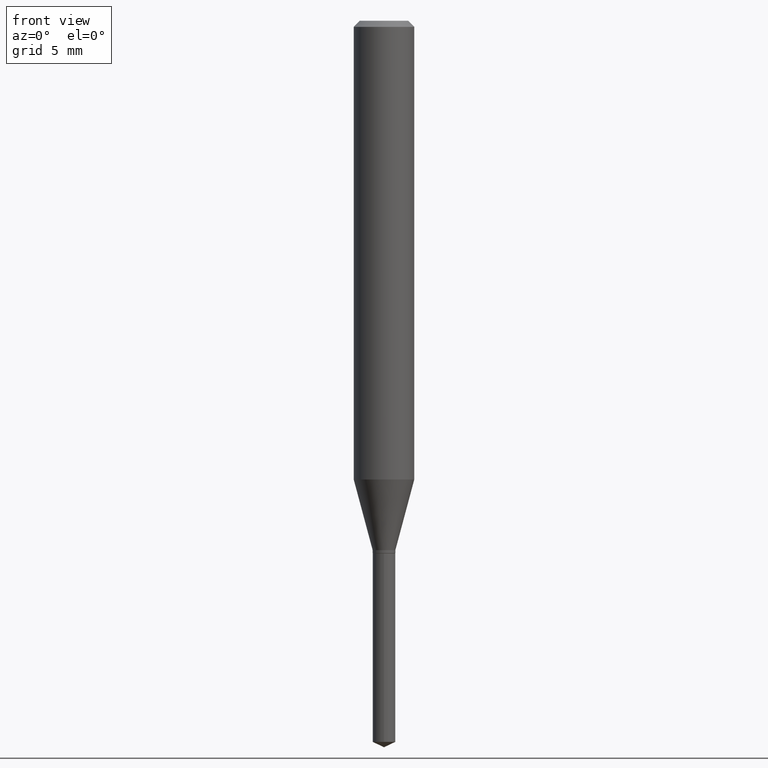
[diagram: clean part render]
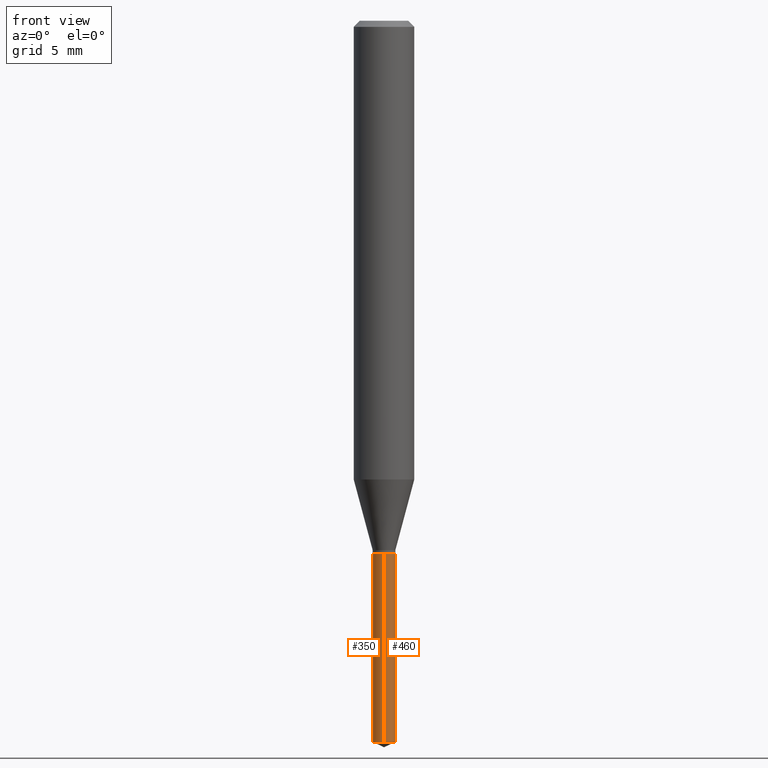
[diagram: same view with one multi-face feature highlighted, each face labeled with its STEP entity id]
A machine part, front view. The highlighted faces form ONE feature: a constant-radius fillet chain: 2 tangent blend faces with common blend radius 0.5956 mm. The faces share edges in the B-rep.
Their STEP definitions:
[1] entity #460 (Cylinder):
#3 = DIRECTION ( 'NONE',  ( -2.445399690415121530E-29, 3.491580316559632610E-15, 1.000000000000000000 ) ) ;
#10 = DIRECTION ( 'NONE',  ( -6.982962677686266711E-15, -1.000000000000000000, 5.824835807386488998E-15 ) ) ;
#12 = DIRECTION ( 'NONE',  ( -2.445399690415121810E-29, 3.491580316559632610E-15, 1.000000000000000000 ) ) ;
#47 = CARTESIAN_POINT ( 'NONE',  ( 3.641435326231919631E-29, -5.199081466827486019E-15, -1.489065085416265699 ) ) ;
#62 = EDGE_CURVE ( 'NONE', #411, #177, #218, .T. ) ;
#65 = FACE_OUTER_BOUND ( 'NONE', #153, .T. ) ;
#84 = ORIENTED_EDGE ( 'NONE', *, *, #62, .F. ) ;
#85 = CARTESIAN_POINT ( 'NONE',  ( -1.637504747917160560E-16, -0.02345000000000384277, -1.099999999999999867 ) ) ;
#100 = VECTOR ( 'NONE', #462, 39.37007874015748143 ) ;
#102 = CIRCLE ( 'NONE', #141, 0.02344999999999999862 ) ;
#104 = ORIENTED_EDGE ( 'NONE', *, *, #423, .F. ) ;
#112 = CARTESIAN_POINT ( 'NONE',  ( 1.666222715357799440E-16, 0.02344999999999615795, -1.100000000000000089 ) ) ;
#122 = LINE ( 'NONE', #171, #100 ) ;
#135 = AXIS2_PLACEMENT_3D ( 'NONE', #209, #281, #10 ) ;
#141 = AXIS2_PLACEMENT_3D ( 'NONE', #47, #3, #167 ) ;
#146 = CYLINDRICAL_SURFACE ( 'NONE', #135, 0.02344999999999999862 ) ;
#153 = EDGE_LOOP ( 'NONE', ( #292, #256, #84, #104 ) ) ;
#155 = CARTESIAN_POINT ( 'NONE',  ( -1.637504747917064910E-16, -0.02345000000000520279, -1.489065085416265699 ) ) ;
#167 = DIRECTION ( 'NONE',  ( -6.982962677686266711E-15, -1.000000000000000000, 0.000000000000000000 ) ) ;
#171 = CARTESIAN_POINT ( 'NONE',  ( 1.666222715357703790E-16, 0.02344999999999615795, -1.100000000000000089 ) ) ;
#177 = VERTEX_POINT ( 'NONE', #112 ) ;
#208 = EDGE_CURVE ( 'NONE', #217, #177, #122, .T. ) ;
#209 = CARTESIAN_POINT ( 'NONE',  ( 2.690015686803650369E-29, -3.840629472727460101E-15, -1.100000000000000089 ) ) ;
#217 = VERTEX_POINT ( 'NONE', #431 ) ;
#218 = CIRCLE ( 'NONE', #426, 0.02344999999999999862 ) ;
#256 = ORIENTED_EDGE ( 'NONE', *, *, #208, .T. ) ;
#261 = DIRECTION ( 'NONE',  ( -6.982962677686266711E-15, -1.000000000000000000, 5.824835807386488998E-15 ) ) ;
#269 = LINE ( 'NONE', #85, #484 ) ;
#281 = DIRECTION ( 'NONE',  ( -2.445399690415121530E-29, 3.491580316559632610E-15, 1.000000000000000000 ) ) ;
#292 = ORIENTED_EDGE ( 'NONE', *, *, #385, .T. ) ;
#382 = CARTESIAN_POINT ( 'NONE',  ( -1.637504747917160560E-16, -0.02345000000000384277, -1.099999999999999867 ) ) ;
#385 = EDGE_CURVE ( 'NONE', #438, #217, #102, .T. ) ;
#411 = VERTEX_POINT ( 'NONE', #382 ) ;
#415 = DIRECTION ( 'NONE',  ( -2.445399690415121530E-29, 3.491580316559632610E-15, 1.000000000000000000 ) ) ;
#423 = EDGE_CURVE ( 'NONE', #438, #411, #269, .T. ) ;
#426 = AXIS2_PLACEMENT_3D ( 'NONE', #443, #415, #261 ) ;
#431 = CARTESIAN_POINT ( 'NONE',  ( 1.666222715357799193E-16, 0.02344999999999480139, -1.489065085416265699 ) ) ;
#438 = VERTEX_POINT ( 'NONE', #155 ) ;
#443 = CARTESIAN_POINT ( 'NONE',  ( 2.690015686803650369E-29, -3.840629472727460101E-15, -1.100000000000000089 ) ) ;
#460 = ADVANCED_FACE ( 'NONE', ( #65 ), #146, .T. ) ;
#462 = DIRECTION ( 'NONE',  ( -2.445399690415121810E-29, 3.491580316559632610E-15, 1.000000000000000000 ) ) ;
#484 = VECTOR ( 'NONE', #12, 39.37007874015748143 ) ;
[2] entity #350 (Cylinder):
#12 = DIRECTION ( 'NONE',  ( -2.445399690415121810E-29, 3.491580316559632610E-15, 1.000000000000000000 ) ) ;
#45 = CARTESIAN_POINT ( 'NONE',  ( 2.690015686803650369E-29, -3.840629472727460101E-15, -1.100000000000000089 ) ) ;
#85 = CARTESIAN_POINT ( 'NONE',  ( -1.637504747917160560E-16, -0.02345000000000384277, -1.099999999999999867 ) ) ;
#100 = VECTOR ( 'NONE', #462, 39.37007874015748143 ) ;
#111 = ORIENTED_EDGE ( 'NONE', *, *, #469, .F. ) ;
#112 = CARTESIAN_POINT ( 'NONE',  ( 1.666222715357799440E-16, 0.02344999999999615795, -1.100000000000000089 ) ) ;
#115 = DIRECTION ( 'NONE',  ( -2.445399690415121530E-29, 3.491580316559632610E-15, 1.000000000000000000 ) ) ;
#122 = LINE ( 'NONE', #171, #100 ) ;
#124 = CARTESIAN_POINT ( 'NONE',  ( 3.641435326231919631E-29, -5.199081466827486019E-15, -1.489065085416265699 ) ) ;
#128 = DIRECTION ( 'NONE',  ( -6.982962677686266711E-15, -1.000000000000000000, 5.824835807386488998E-15 ) ) ;
#151 = CIRCLE ( 'NONE', #362, 0.02344999999999999862 ) ;
#155 = CARTESIAN_POINT ( 'NONE',  ( -1.637504747917064910E-16, -0.02345000000000520279, -1.489065085416265699 ) ) ;
#161 = DIRECTION ( 'NONE',  ( -2.445399690415121530E-29, 3.491580316559632610E-15, 1.000000000000000000 ) ) ;
#171 = CARTESIAN_POINT ( 'NONE',  ( 1.666222715357703790E-16, 0.02344999999999615795, -1.100000000000000089 ) ) ;
#177 = VERTEX_POINT ( 'NONE', #112 ) ;
#196 = DIRECTION ( 'NONE',  ( -2.445399690415121530E-29, 3.491580316559632610E-15, 1.000000000000000000 ) ) ;
#208 = EDGE_CURVE ( 'NONE', #217, #177, #122, .T. ) ;
#211 = AXIS2_PLACEMENT_3D ( 'NONE', #45, #196, #348 ) ;
#217 = VERTEX_POINT ( 'NONE', #431 ) ;
#269 = LINE ( 'NONE', #85, #484 ) ;
#270 = CARTESIAN_POINT ( 'NONE',  ( 2.690015686803650369E-29, -3.840629472727460101E-15, -1.100000000000000089 ) ) ;
#285 = ORIENTED_EDGE ( 'NONE', *, *, #423, .T. ) ;
#287 = AXIS2_PLACEMENT_3D ( 'NONE', #124, #161, #387 ) ;
#348 = DIRECTION ( 'NONE',  ( -6.982962677686266711E-15, -1.000000000000000000, 5.824835807386488998E-15 ) ) ;
#350 = ADVANCED_FACE ( 'NONE', ( #388 ), #394, .T. ) ;
#362 = AXIS2_PLACEMENT_3D ( 'NONE', #270, #115, #128 ) ;
#382 = CARTESIAN_POINT ( 'NONE',  ( -1.637504747917160560E-16, -0.02345000000000384277, -1.099999999999999867 ) ) ;
#387 = DIRECTION ( 'NONE',  ( -6.982962677686266711E-15, -1.000000000000000000, 0.000000000000000000 ) ) ;
#388 = FACE_OUTER_BOUND ( 'NONE', #409, .T. ) ;
#389 = EDGE_CURVE ( 'NONE', #217, #438, #437, .T. ) ;
#394 = CYLINDRICAL_SURFACE ( 'NONE', #211, 0.02344999999999999862 ) ;
#405 = ORIENTED_EDGE ( 'NONE', *, *, #389, .T. ) ;
#409 = EDGE_LOOP ( 'NONE', ( #480, #405, #285, #111 ) ) ;
#411 = VERTEX_POINT ( 'NONE', #382 ) ;
#423 = EDGE_CURVE ( 'NONE', #438, #411, #269, .T. ) ;
#431 = CARTESIAN_POINT ( 'NONE',  ( 1.666222715357799193E-16, 0.02344999999999480139, -1.489065085416265699 ) ) ;
#437 = CIRCLE ( 'NONE', #287, 0.02344999999999999862 ) ;
#438 = VERTEX_POINT ( 'NONE', #155 ) ;
#462 = DIRECTION ( 'NONE',  ( -2.445399690415121810E-29, 3.491580316559632610E-15, 1.000000000000000000 ) ) ;
#469 = EDGE_CURVE ( 'NONE', #177, #411, #151, .T. ) ;
#480 = ORIENTED_EDGE ( 'NONE', *, *, #208, .F. ) ;
#484 = VECTOR ( 'NONE', #12, 39.37007874015748143 ) ;